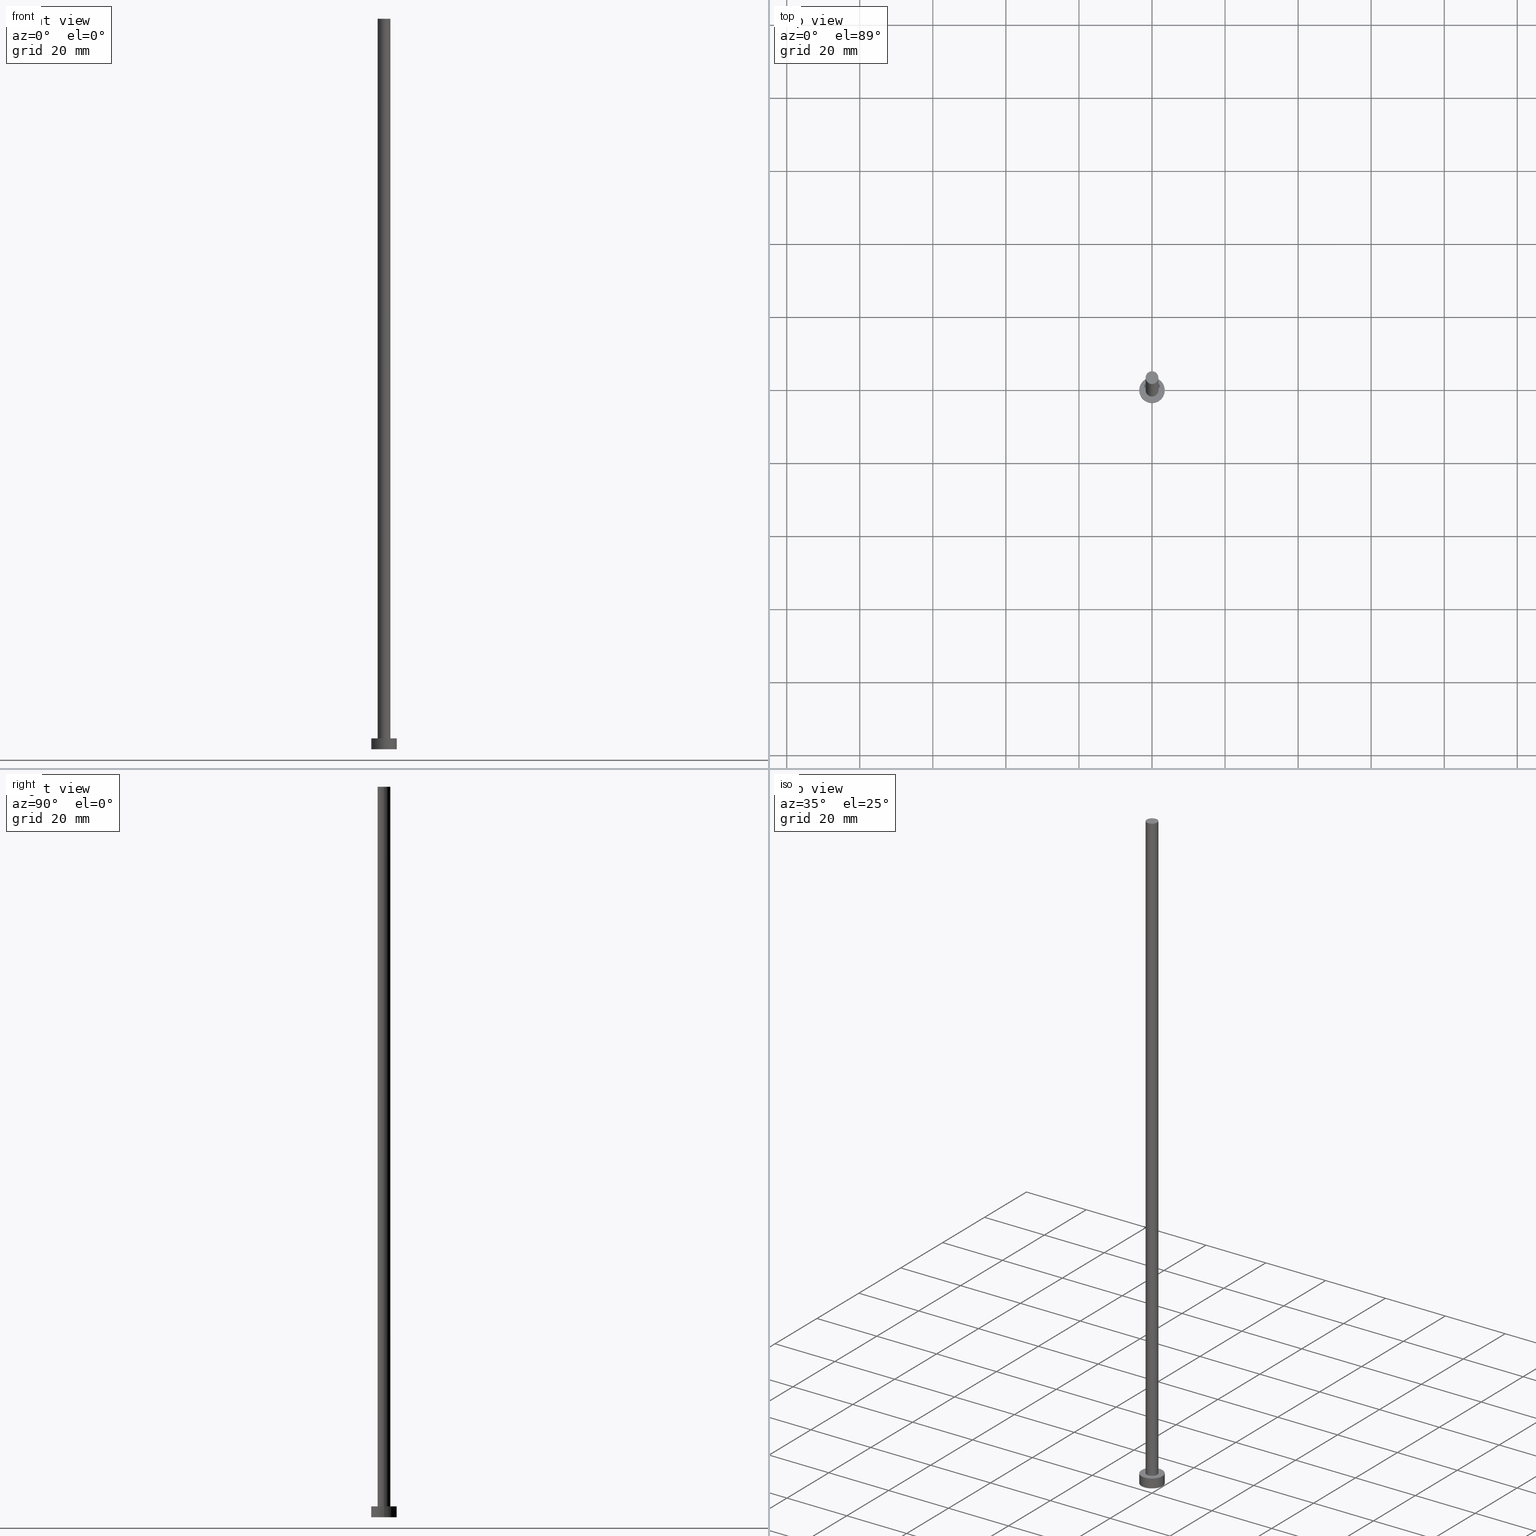
[diagram: canonical four-view strip — front | top / right | iso, engineering-drawing reading convention]
A machine part, canonical four-view strip (front | top / right | iso — engineering-drawing reading convention). The complete STEP part file that produces these views, byte-faithful:
ISO-10303-21;
HEADER;
FILE_DESCRIPTION (( 'STEP AP203' ),
    '1' );
FILE_NAME ('e851.STEP',
    '2023-02-12T12:04:05',
    ( '' ),
    ( '' ),
    'SwSTEP 2.0',
    'SolidWorks 2019',
    '' );
FILE_SCHEMA (( 'CONFIG_CONTROL_DESIGN' ));
ENDSEC;

DATA;
#1 = CIRCLE ( 'NONE', #236, 3.500000000000000000 ) ;
#2 = PRODUCT_RELATED_PRODUCT_CATEGORY ( 'detail', '', ( #248 ) ) ;
#3 = AXIS2_PLACEMENT_3D ( 'NONE', #97, #251, #191 ) ;
#4 = DIRECTION ( 'NONE',  ( 1.000000000000000000, 0.000000000000000000, -0.000000000000000000 ) ) ;
#5 = DIRECTION ( 'NONE',  ( 0.000000000000000000, 0.000000000000000000, 1.000000000000000000 ) ) ;
#6 = ORIENTED_EDGE ( 'NONE', *, *, #238, .T. ) ;
#7 = PERSON ( 'NEUR�EN�', 'NEUR�EN�', 'NEUR�EN�', ('NEUR�EN�'), ('NEUR�EN�'), ('NEUR�EN�') ) ;
#8 = EDGE_CURVE ( 'NONE', #30, #44, #219, .T. ) ;
#9 = APPROVAL_ROLE ( '' ) ;
#10 = ORIENTED_EDGE ( 'NONE', *, *, #207, .T. ) ;
#11 = VECTOR ( 'NONE', #69, 1000.000000000000000 ) ;
#12 = CARTESIAN_POINT ( 'NONE',  ( 0.000000000000000000, 0.000000000000000000, 0.000000000000000000 ) ) ;
#13 = CC_DESIGN_DATE_AND_TIME_ASSIGNMENT ( #203, #27, ( #179 ) ) ;
#14 = DIRECTION ( 'NONE',  ( -0.000000000000000000, -0.000000000000000000, -1.000000000000000000 ) ) ;
#15 = FACE_OUTER_BOUND ( 'NONE', #242, .T. ) ;
#16 = AXIS2_PLACEMENT_3D ( 'NONE', #56, #94, #232 ) ;
#17 = LOCAL_TIME ( 13, 4, 5.000000000000000000, #62 ) ;
#18 = CARTESIAN_POINT ( 'NONE',  ( 0.000000000000000000, 0.000000000000000000, 3.000000000000000000 ) ) ;
#19 = FACE_OUTER_BOUND ( 'NONE', #182, .T. ) ;
#20 = AXIS2_PLACEMENT_3D ( 'NONE', #169, #247, #228 ) ;
#21 = EDGE_CURVE ( 'NONE', #240, #84, #61, .T. ) ;
#22 = CARTESIAN_POINT ( 'NONE',  ( 0.000000000000000000, 0.000000000000000000, 200.0000000000000000 ) ) ;
#23 = EDGE_CURVE ( 'NONE', #82, #142, #133, .T. ) ;
#24 = APPROVAL_STATUS ( 'not_yet_approved' ) ;
#25 = APPROVAL_ROLE ( '' ) ;
#26 = ORIENTED_EDGE ( 'NONE', *, *, #137, .F. ) ;
#27 = DATE_TIME_ROLE ( 'classification_date' ) ;
#28 = DIRECTION ( 'NONE',  ( 1.000000000000000000, 0.000000000000000000, 0.000000000000000000 ) ) ;
#29 = AXIS2_PLACEMENT_3D ( 'NONE', #233, #174, #193 ) ;
#30 = VERTEX_POINT ( 'NONE', #211 ) ;
#31 = APPLICATION_PROTOCOL_DEFINITION ( 'international standard', 'config_control_design', 1994, #188 ) ;
#32 = ORIENTED_EDGE ( 'NONE', *, *, #23, .T. ) ;
#33 = VERTEX_POINT ( 'NONE', #176 ) ;
#34 = FACE_BOUND ( 'NONE', #64, .T. ) ;
#35 = CYLINDRICAL_SURFACE ( 'NONE', #16, 3.500000000000000000 ) ;
#36 = DIRECTION ( 'NONE',  ( 0.000000000000000000, 0.000000000000000000, 1.000000000000000000 ) ) ;
#37 = CARTESIAN_POINT ( 'NONE',  ( 1.750000000000000000, 2.143131898507868297E-16, 200.0000000000000000 ) ) ;
#38 = LOCAL_TIME ( 13, 4, 5.000000000000000000, #180 ) ;
#39 = DIRECTION ( 'NONE',  ( -1.000000000000000000, 0.000000000000000000, 0.000000000000000000 ) ) ;
#40 = CIRCLE ( 'NONE', #235, 1.750000000000000000 ) ;
#41 = CIRCLE ( 'NONE', #201, 1.750000000000000000 ) ;
#42 = PLANE ( 'NONE',  #91 ) ;
#43 = DATE_TIME_ROLE ( 'creation_date' ) ;
#44 = VERTEX_POINT ( 'NONE', #229 ) ;
#45 = DIRECTION ( 'NONE',  ( 0.000000000000000000, 0.000000000000000000, 1.000000000000000000 ) ) ;
#46 = EDGE_LOOP ( 'NONE', ( #126, #241, #190, #162 ) ) ;
#47 = ADVANCED_FACE ( 'NONE', ( #52 ), #173, .T. ) ;
#48 = DIRECTION ( 'NONE',  ( 1.000000000000000000, 0.000000000000000000, 0.000000000000000000 ) ) ;
#49 = PERSON_AND_ORGANIZATION ( #7, #134 ) ;
#50 = ORIENTED_EDGE ( 'NONE', *, *, #88, .F. ) ;
#51 = EDGE_CURVE ( 'NONE', #33, #142, #40, .T. ) ;
#52 = FACE_OUTER_BOUND ( 'NONE', #89, .T. ) ;
#53 = DIRECTION ( 'NONE',  ( 0.000000000000000000, 0.000000000000000000, 1.000000000000000000 ) ) ;
#54 = LINE ( 'NONE', #110, #11 ) ;
#55 = CARTESIAN_POINT ( 'NONE',  ( 0.000000000000000000, 0.000000000000000000, 3.000000000000000000 ) ) ;
#56 = CARTESIAN_POINT ( 'NONE',  ( 0.000000000000000000, 0.000000000000000000, 3.000000000000000000 ) ) ;
#57 = APPROVAL_PERSON_ORGANIZATION ( #226, #165, #220 ) ;
#58 = CC_DESIGN_PERSON_AND_ORGANIZATION_ASSIGNMENT ( #166, #161, ( #179 ) ) ;
#59 = CC_DESIGN_PERSON_AND_ORGANIZATION_ASSIGNMENT ( #221, #123, ( #155 ) ) ;
#60 = ORIENTED_EDGE ( 'NONE', *, *, #238, .F. ) ;
#61 = CIRCLE ( 'NONE', #198, 3.500000000000000000 ) ;
#62 = COORDINATED_UNIVERSAL_TIME_OFFSET ( 1, 0, .AHEAD. ) ;
#63 = ORIENTED_EDGE ( 'NONE', *, *, #175, .F. ) ;
#64 = EDGE_LOOP ( 'NONE', ( #208, #244 ) ) ;
#65 = PERSON_AND_ORGANIZATION_ROLE ( 'creator' ) ;
#66 = EDGE_LOOP ( 'NONE', ( #6, #68 ) ) ;
#67 = APPROVAL_STATUS ( 'not_yet_approved' ) ;
#68 = ORIENTED_EDGE ( 'NONE', *, *, #8, .T. ) ;
#69 = DIRECTION ( 'NONE',  ( -0.000000000000000000, -0.000000000000000000, -1.000000000000000000 ) ) ;
#70 = CARTESIAN_POINT ( 'NONE',  ( 0.000000000000000000, 0.000000000000000000, 200.0000000000000000 ) ) ;
#71 = CARTESIAN_POINT ( 'NONE',  ( -1.750000000000000000, 0.000000000000000000, 3.000000000000000000 ) ) ;
#72 = APPLICATION_CONTEXT ( 'configuration controlled 3d designs of mechanical parts and assemblies' ) ;
#73 =( GEOMETRIC_REPRESENTATION_CONTEXT ( 3 ) GLOBAL_UNCERTAINTY_ASSIGNED_CONTEXT ( ( #128 ) ) GLOBAL_UNIT_ASSIGNED_CONTEXT ( ( #79, #159, #116 ) ) REPRESENTATION_CONTEXT ( 'NONE', 'WORKASPACE' ) );
#74 = DIRECTION ( 'NONE',  ( 0.000000000000000000, 0.000000000000000000, 1.000000000000000000 ) ) ;
#75 = DIRECTION ( 'NONE',  ( 0.000000000000000000, 0.000000000000000000, 1.000000000000000000 ) ) ;
#76 = APPROVAL_PERSON_ORGANIZATION ( #143, #111, #25 ) ;
#77 = FACE_OUTER_BOUND ( 'NONE', #184, .T. ) ;
#78 = CARTESIAN_POINT ( 'NONE',  ( 0.000000000000000000, 0.000000000000000000, 3.000000000000000000 ) ) ;
#79 =( LENGTH_UNIT ( ) NAMED_UNIT ( * ) SI_UNIT ( .MILLI., .METRE. ) );
#80 = CALENDAR_DATE ( 2023, 12, 2 ) ;
#81 = MECHANICAL_CONTEXT ( 'NONE', #72, 'mechanical' ) ;
#82 = VERTEX_POINT ( 'NONE', #112 ) ;
#83 = APPROVAL_DATE_TIME ( #243, #111 ) ;
#84 = VERTEX_POINT ( 'NONE', #209 ) ;
#85 = CALENDAR_DATE ( 2023, 12, 2 ) ;
#86 = ORIENTED_EDGE ( 'NONE', *, *, #21, .F. ) ;
#87 = CALENDAR_DATE ( 2023, 12, 2 ) ;
#88 = EDGE_CURVE ( 'NONE', #84, #240, #245, .T. ) ;
#89 = EDGE_LOOP ( 'NONE', ( #26, #122, #227, #90 ) ) ;
#90 = ORIENTED_EDGE ( 'NONE', *, *, #23, .F. ) ;
#91 = AXIS2_PLACEMENT_3D ( 'NONE', #22, #178, #4 ) ;
#92 = PLANE ( 'NONE',  #194 ) ;
#93 = DESIGN_CONTEXT ( 'detailed design', #188, 'design' ) ;
#94 = DIRECTION ( 'NONE',  ( -0.000000000000000000, -0.000000000000000000, -1.000000000000000000 ) ) ;
#95 = AXIS2_PLACEMENT_3D ( 'NONE', #154, #253, #171 ) ;
#96 = APPROVAL_PERSON_ORGANIZATION ( #49, #250, #9 ) ;
#97 = CARTESIAN_POINT ( 'NONE',  ( 0.000000000000000000, 0.000000000000000000, 200.0000000000000000 ) ) ;
#98 = LINE ( 'NONE', #139, #252 ) ;
#99 = CARTESIAN_POINT ( 'NONE',  ( 0.000000000000000000, 0.000000000000000000, 0.000000000000000000 ) ) ;
#100 = CC_DESIGN_SECURITY_CLASSIFICATION ( #179, ( #155 ) ) ;
#101 = COORDINATED_UNIVERSAL_TIME_OFFSET ( 1, 0, .AHEAD. ) ;
#102 = ORIENTED_EDGE ( 'NONE', *, *, #88, .T. ) ;
#103 = CC_DESIGN_PERSON_AND_ORGANIZATION_ASSIGNMENT ( #239, #205, ( #248 ) ) ;
#104 = APPROVAL_DATE_TIME ( #125, #250 ) ;
#105 = AXIS2_PLACEMENT_3D ( 'NONE', #12, #254, #153 ) ;
#106 = ADVANCED_FACE ( 'NONE', ( #34, #113 ), #92, .T. ) ;
#107 = APPROVAL_STATUS ( 'not_yet_approved' ) ;
#108 = ORIENTED_EDGE ( 'NONE', *, *, #160, .F. ) ;
#109 = DIRECTION ( 'NONE',  ( 1.000000000000000000, 0.000000000000000000, 0.000000000000000000 ) ) ;
#110 = CARTESIAN_POINT ( 'NONE',  ( 1.750000000000000000, 2.143131898507868297E-16, 200.0000000000000000 ) ) ;
#111 = APPROVAL ( #24, 'NEUR�EN�' ) ;
#112 = CARTESIAN_POINT ( 'NONE',  ( -1.750000000000000000, 0.000000000000000000, 200.0000000000000000 ) ) ;
#113 = FACE_OUTER_BOUND ( 'NONE', #66, .T. ) ;
#114 = CC_DESIGN_APPROVAL ( #250, ( #179 ) ) ;
#115 = DIRECTION ( 'NONE',  ( 1.000000000000000000, 0.000000000000000000, -0.000000000000000000 ) ) ;
#116 =( NAMED_UNIT ( * ) SI_UNIT ( $, .STERADIAN. ) SOLID_ANGLE_UNIT ( ) );
#117 = DIRECTION ( 'NONE',  ( 0.000000000000000000, 0.000000000000000000, 1.000000000000000000 ) ) ;
#118 = CLOSED_SHELL ( 'NONE', ( #47, #158, #152, #106, #197, #170, #255 ) ) ;
#119 = APPLICATION_PROTOCOL_DEFINITION ( 'international standard', 'config_control_design', 1994, #72 ) ;
#120 = LOCAL_TIME ( 13, 4, 5.000000000000000000, #185 ) ;
#121 = COORDINATED_UNIVERSAL_TIME_OFFSET ( 1, 0, .AHEAD. ) ;
#122 = ORIENTED_EDGE ( 'NONE', *, *, #175, .T. ) ;
#123 = PERSON_AND_ORGANIZATION_ROLE ( 'creator' ) ;
#124 = CIRCLE ( 'NONE', #163, 1.750000000000000000 ) ;
#125 = DATE_AND_TIME ( #85, #120 ) ;
#126 = ORIENTED_EDGE ( 'NONE', *, *, #8, .F. ) ;
#127 = CARTESIAN_POINT ( 'NONE',  ( 0.000000000000000000, 0.000000000000000000, 3.000000000000000000 ) ) ;
#128 = UNCERTAINTY_MEASURE_WITH_UNIT (LENGTH_MEASURE( 1.000000000000000082E-05 ), #79, 'distance_accuracy_value', 'NONE');
#129 = AXIS2_PLACEMENT_3D ( 'NONE', #145, #45, #28 ) ;
#130 = DIRECTION ( 'NONE',  ( -0.000000000000000000, -0.000000000000000000, -1.000000000000000000 ) ) ;
#131 = DIRECTION ( 'NONE',  ( -0.000000000000000000, -0.000000000000000000, -1.000000000000000000 ) ) ;
#132 = DIRECTION ( 'NONE',  ( 1.000000000000000000, 0.000000000000000000, 0.000000000000000000 ) ) ;
#133 = LINE ( 'NONE', #196, #230 ) ;
#134 = ORGANIZATION ( 'NEUR�EN�', 'NEUR�EN�', '' ) ;
#135 = CARTESIAN_POINT ( 'NONE',  ( 3.500000000000000000, 4.286263797015736595E-16, 0.000000000000000000 ) ) ;
#136 = CIRCLE ( 'NONE', #29, 1.750000000000000000 ) ;
#137 = EDGE_CURVE ( 'NONE', #167, #82, #136, .T. ) ;
#138 = LOCAL_TIME ( 13, 4, 5.000000000000000000, #101 ) ;
#139 = CARTESIAN_POINT ( 'NONE',  ( 3.500000000000000000, 4.286263797015736595E-16, 3.000000000000000000 ) ) ;
#140 = CC_DESIGN_DATE_AND_TIME_ASSIGNMENT ( #218, #43, ( #189 ) ) ;
#141 = CALENDAR_DATE ( 2023, 12, 2 ) ;
#142 = VERTEX_POINT ( 'NONE', #71 ) ;
#143 = PERSON_AND_ORGANIZATION ( #7, #134 ) ;
#144 = CC_DESIGN_APPROVAL ( #111, ( #155 ) ) ;
#145 = CARTESIAN_POINT ( 'NONE',  ( 0.000000000000000000, 0.000000000000000000, 3.000000000000000000 ) ) ;
#146 = CARTESIAN_POINT ( 'NONE',  ( 0.000000000000000000, 0.000000000000000000, 0.000000000000000000 ) ) ;
#147 = PERSON_AND_ORGANIZATION_ROLE ( 'design_supplier' ) ;
#148 = ORIENTED_EDGE ( 'NONE', *, *, #137, .T. ) ;
#149 = PERSON_AND_ORGANIZATION ( #7, #134 ) ;
#150 = ORIENTED_EDGE ( 'NONE', *, *, #216, .T. ) ;
#151 = PLANE ( 'NONE',  #20 ) ;
#152 = ADVANCED_FACE ( 'NONE', ( #15 ), #156, .T. ) ;
#153 = DIRECTION ( 'NONE',  ( 1.000000000000000000, 0.000000000000000000, 0.000000000000000000 ) ) ;
#154 = CARTESIAN_POINT ( 'NONE',  ( 0.000000000000000000, 0.000000000000000000, 3.000000000000000000 ) ) ;
#155 = PRODUCT_DEFINITION_FORMATION_WITH_SPECIFIED_SOURCE ( 'LIBOVOLN�', '', #248, .NOT_KNOWN. ) ;
#156 = CYLINDRICAL_SURFACE ( 'NONE', #95, 3.500000000000000000 ) ;
#157 = CYLINDRICAL_SURFACE ( 'NONE', #199, 1.750000000000000000 ) ;
#158 = ADVANCED_FACE ( 'NONE', ( #249 ), #35, .T. ) ;
#159 =( NAMED_UNIT ( * ) PLANE_ANGLE_UNIT ( ) SI_UNIT ( $, .RADIAN. ) );
#160 = EDGE_CURVE ( 'NONE', #82, #167, #124, .T. ) ;
#161 = PERSON_AND_ORGANIZATION_ROLE ( 'classification_officer' ) ;
#162 = ORIENTED_EDGE ( 'NONE', *, *, #216, .F. ) ;
#163 = AXIS2_PLACEMENT_3D ( 'NONE', #70, #75, #132 ) ;
#164 = VECTOR ( 'NONE', #14, 1000.000000000000000 ) ;
#165 = APPROVAL ( #107, 'NEUR�EN�' ) ;
#166 = PERSON_AND_ORGANIZATION ( #7, #134 ) ;
#167 = VERTEX_POINT ( 'NONE', #37 ) ;
#168 = AXIS2_PLACEMENT_3D ( 'NONE', #99, #5, #48 ) ;
#169 = CARTESIAN_POINT ( 'NONE',  ( 0.000000000000000000, 0.000000000000000000, 0.000000000000000000 ) ) ;
#170 = ADVANCED_FACE ( 'NONE', ( #231 ), #157, .T. ) ;
#171 = DIRECTION ( 'NONE',  ( -1.000000000000000000, 0.000000000000000000, 0.000000000000000000 ) ) ;
#172 = PRODUCT_DEFINITION_SHAPE ( 'NONE', 'NONE',  #189 ) ;
#173 = CYLINDRICAL_SURFACE ( 'NONE', #3, 1.750000000000000000 ) ;
#174 = DIRECTION ( 'NONE',  ( 0.000000000000000000, 0.000000000000000000, 1.000000000000000000 ) ) ;
#175 = EDGE_CURVE ( 'NONE', #167, #33, #54, .T. ) ;
#176 = CARTESIAN_POINT ( 'NONE',  ( 1.750000000000000000, 2.143131898507868297E-16, 3.000000000000000000 ) ) ;
#177 = CC_DESIGN_PERSON_AND_ORGANIZATION_ASSIGNMENT ( #149, #147, ( #155 ) ) ;
#178 = DIRECTION ( 'NONE',  ( 0.000000000000000000, 0.000000000000000000, 1.000000000000000000 ) ) ;
#179 = SECURITY_CLASSIFICATION ( '', '', #181 ) ;
#180 = COORDINATED_UNIVERSAL_TIME_OFFSET ( 1, 0, .AHEAD. ) ;
#181 = SECURITY_CLASSIFICATION_LEVEL ( 'unclassified' ) ;
#182 = EDGE_LOOP ( 'NONE', ( #50, #86 ) ) ;
#183 = SHAPE_DEFINITION_REPRESENTATION ( #172, #215 ) ;
#184 = EDGE_LOOP ( 'NONE', ( #206, #148 ) ) ;
#185 = COORDINATED_UNIVERSAL_TIME_OFFSET ( 1, 0, .AHEAD. ) ;
#186 = ORIENTED_EDGE ( 'NONE', *, *, #225, .F. ) ;
#187 = APPROVAL_DATE_TIME ( #237, #165 ) ;
#188 = APPLICATION_CONTEXT ( 'configuration controlled 3d designs of mechanical parts and assemblies' ) ;
#189 = PRODUCT_DEFINITION ( 'NEZN�M�', '', #155, #93 ) ;
#190 = ORIENTED_EDGE ( 'NONE', *, *, #21, .T. ) ;
#191 = DIRECTION ( 'NONE',  ( -1.000000000000000000, 0.000000000000000000, 0.000000000000000000 ) ) ;
#192 = CARTESIAN_POINT ( 'NONE',  ( -3.500000000000000000, 0.000000000000000000, 3.000000000000000000 ) ) ;
#193 = DIRECTION ( 'NONE',  ( 1.000000000000000000, 0.000000000000000000, 0.000000000000000000 ) ) ;
#194 = AXIS2_PLACEMENT_3D ( 'NONE', #18, #74, #115 ) ;
#195 = DIRECTION ( 'NONE',  ( 1.000000000000000000, 0.000000000000000000, 0.000000000000000000 ) ) ;
#196 = CARTESIAN_POINT ( 'NONE',  ( -1.750000000000000000, 0.000000000000000000, 200.0000000000000000 ) ) ;
#197 = ADVANCED_FACE ( 'NONE', ( #19 ), #151, .F. ) ;
#198 = AXIS2_PLACEMENT_3D ( 'NONE', #146, #224, #222 ) ;
#199 = AXIS2_PLACEMENT_3D ( 'NONE', #212, #131, #39 ) ;
#200 = DIRECTION ( 'NONE',  ( -0.000000000000000000, -0.000000000000000000, -1.000000000000000000 ) ) ;
#201 = AXIS2_PLACEMENT_3D ( 'NONE', #127, #53, #109 ) ;
#202 = PERSON_AND_ORGANIZATION ( #7, #134 ) ;
#203 = DATE_AND_TIME ( #223, #17 ) ;
#204 = EDGE_LOOP ( 'NONE', ( #63, #108, #32, #10 ) ) ;
#205 = PERSON_AND_ORGANIZATION_ROLE ( 'design_owner' ) ;
#206 = ORIENTED_EDGE ( 'NONE', *, *, #160, .T. ) ;
#207 = EDGE_CURVE ( 'NONE', #142, #33, #41, .T. ) ;
#208 = ORIENTED_EDGE ( 'NONE', *, *, #207, .F. ) ;
#209 = CARTESIAN_POINT ( 'NONE',  ( -3.500000000000000000, 0.000000000000000000, 0.000000000000000000 ) ) ;
#210 = LINE ( 'NONE', #192, #164 ) ;
#211 = CARTESIAN_POINT ( 'NONE',  ( 3.500000000000000000, 4.286263797015736595E-16, 3.000000000000000000 ) ) ;
#212 = CARTESIAN_POINT ( 'NONE',  ( 0.000000000000000000, 0.000000000000000000, 200.0000000000000000 ) ) ;
#213 = CC_DESIGN_APPROVAL ( #165, ( #189 ) ) ;
#214 = MANIFOLD_SOLID_BREP ( 'P�idat vysunut�m3', #118 ) ;
#215 = ADVANCED_BREP_SHAPE_REPRESENTATION ( 'e851', ( #214, #168 ), #73 ) ;
#216 = EDGE_CURVE ( 'NONE', #44, #84, #210, .T. ) ;
#217 = DIRECTION ( 'NONE',  ( 1.000000000000000000, 0.000000000000000000, 0.000000000000000000 ) ) ;
#218 = DATE_AND_TIME ( #141, #246 ) ;
#219 = CIRCLE ( 'NONE', #129, 3.500000000000000000 ) ;
#220 = APPROVAL_ROLE ( '' ) ;
#221 = PERSON_AND_ORGANIZATION ( #7, #134 ) ;
#222 = DIRECTION ( 'NONE',  ( 1.000000000000000000, 0.000000000000000000, 0.000000000000000000 ) ) ;
#223 = CALENDAR_DATE ( 2023, 12, 2 ) ;
#224 = DIRECTION ( 'NONE',  ( 0.000000000000000000, 0.000000000000000000, 1.000000000000000000 ) ) ;
#225 = EDGE_CURVE ( 'NONE', #30, #240, #98, .T. ) ;
#226 = PERSON_AND_ORGANIZATION ( #7, #134 ) ;
#227 = ORIENTED_EDGE ( 'NONE', *, *, #51, .T. ) ;
#228 = DIRECTION ( 'NONE',  ( 1.000000000000000000, 0.000000000000000000, -0.000000000000000000 ) ) ;
#229 = CARTESIAN_POINT ( 'NONE',  ( -3.500000000000000000, 0.000000000000000000, 3.000000000000000000 ) ) ;
#230 = VECTOR ( 'NONE', #130, 1000.000000000000000 ) ;
#231 = FACE_OUTER_BOUND ( 'NONE', #204, .T. ) ;
#232 = DIRECTION ( 'NONE',  ( -1.000000000000000000, 0.000000000000000000, 0.000000000000000000 ) ) ;
#233 = CARTESIAN_POINT ( 'NONE',  ( 0.000000000000000000, 0.000000000000000000, 200.0000000000000000 ) ) ;
#234 = CC_DESIGN_PERSON_AND_ORGANIZATION_ASSIGNMENT ( #202, #65, ( #189 ) ) ;
#235 = AXIS2_PLACEMENT_3D ( 'NONE', #55, #36, #195 ) ;
#236 = AXIS2_PLACEMENT_3D ( 'NONE', #78, #117, #217 ) ;
#237 = DATE_AND_TIME ( #80, #38 ) ;
#238 = EDGE_CURVE ( 'NONE', #44, #30, #1, .T. ) ;
#239 = PERSON_AND_ORGANIZATION ( #7, #134 ) ;
#240 = VERTEX_POINT ( 'NONE', #135 ) ;
#241 = ORIENTED_EDGE ( 'NONE', *, *, #225, .T. ) ;
#242 = EDGE_LOOP ( 'NONE', ( #186, #60, #150, #102 ) ) ;
#243 = DATE_AND_TIME ( #87, #138 ) ;
#244 = ORIENTED_EDGE ( 'NONE', *, *, #51, .F. ) ;
#245 = CIRCLE ( 'NONE', #105, 3.500000000000000000 ) ;
#246 = LOCAL_TIME ( 13, 4, 5.000000000000000000, #121 ) ;
#247 = DIRECTION ( 'NONE',  ( 0.000000000000000000, 0.000000000000000000, 1.000000000000000000 ) ) ;
#248 = PRODUCT ( 'e851', 'e851', '', ( #81 ) ) ;
#249 = FACE_OUTER_BOUND ( 'NONE', #46, .T. ) ;
#250 = APPROVAL ( #67, 'NEUR�EN�' ) ;
#251 = DIRECTION ( 'NONE',  ( -0.000000000000000000, -0.000000000000000000, -1.000000000000000000 ) ) ;
#252 = VECTOR ( 'NONE', #200, 1000.000000000000000 ) ;
#253 = DIRECTION ( 'NONE',  ( -0.000000000000000000, -0.000000000000000000, -1.000000000000000000 ) ) ;
#254 = DIRECTION ( 'NONE',  ( 0.000000000000000000, 0.000000000000000000, 1.000000000000000000 ) ) ;
#255 = ADVANCED_FACE ( 'NONE', ( #77 ), #42, .T. ) ;
ENDSEC;
END-ISO-10303-21;
